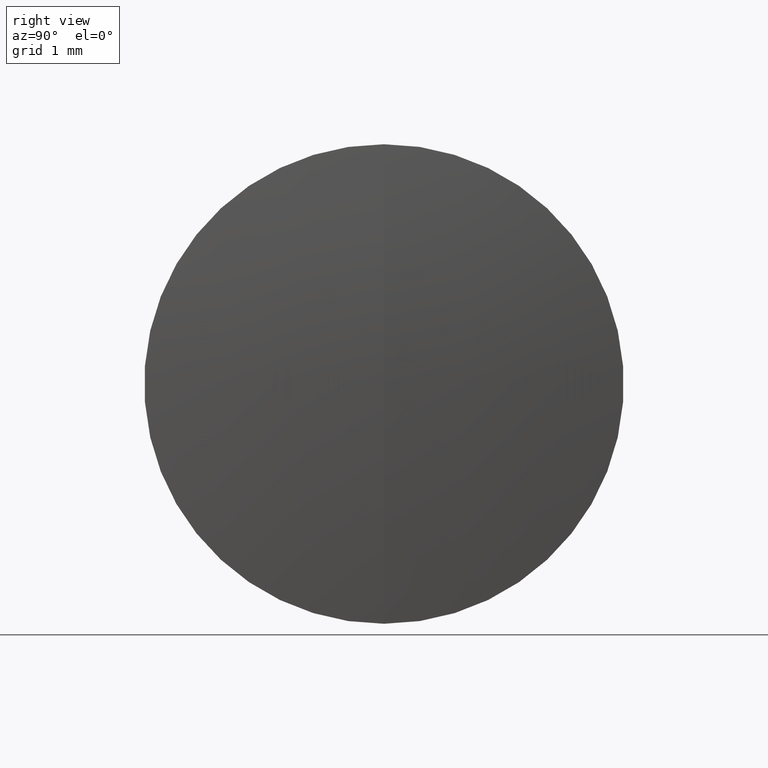
[diagram: clean part render]
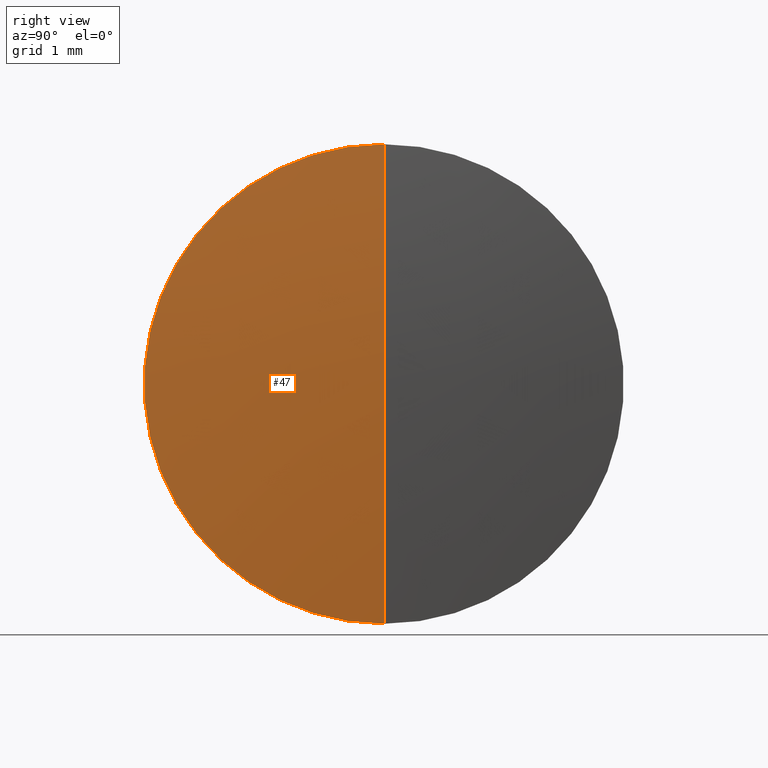
[diagram: same view with one face highlighted and labeled with its STEP entity id]
A machine part, right view. The second image highlights one B-rep face of the part: STEP entity #47.
In plain terms, the highlighted spherical surface has radius 30.759 mm.
Its self-contained STEP definition (entity closure, byte-faithful):
#6 = CIRCLE ( 'NONE', #116, 3.149999999999993700 ) ;
#16 = CARTESIAN_POINT ( 'NONE',  ( -20.28640629775840400, 0.0000000000000000000, 0.0000000000000000000 ) ) ;
#17 = EDGE_CURVE ( 'NONE', #43, #61, #6, .T. ) ;
#27 = AXIS2_PLACEMENT_3D ( 'NONE', #261, #91, #283 ) ;
#36 = DIRECTION ( 'NONE',  ( 0.0000000000000000000, -1.000000000000000000, 0.0000000000000000000 ) ) ;
#43 = VERTEX_POINT ( 'NONE', #104 ) ;
#47 = ADVANCED_FACE ( 'NONE', ( #320 ), #304, .T. ) ;
#61 = VERTEX_POINT ( 'NONE', #274 ) ;
#79 = ORIENTED_EDGE ( 'NONE', *, *, #17, .F. ) ;
#85 = EDGE_CURVE ( 'NONE', #157, #61, #220, .T. ) ;
#91 = DIRECTION ( 'NONE',  ( -0.0000000000000000000, 1.000000000000000000, 1.224646799147353200E-016 ) ) ;
#104 = CARTESIAN_POINT ( 'NONE',  ( 10.31087431670144000, 3.857637417314154800E-016, -3.149999999999993700 ) ) ;
#108 = DIRECTION ( 'NONE',  ( 0.0000000000000000000, 0.0000000000000000000, 1.000000000000000000 ) ) ;
#116 = AXIS2_PLACEMENT_3D ( 'NONE', #164, #202, #108 ) ;
#150 = DIRECTION ( 'NONE',  ( 0.0000000000000000000, 1.000000000000000000, 0.0000000000000000000 ) ) ;
#157 = VERTEX_POINT ( 'NONE', #219 ) ;
#164 = CARTESIAN_POINT ( 'NONE',  ( 10.31087431670144000, 0.0000000000000000000, 0.0000000000000000000 ) ) ;
#167 = EDGE_LOOP ( 'NONE', ( #204, #223, #79 ) ) ;
#176 = CARTESIAN_POINT ( 'NONE',  ( -20.28640629775840400, 0.0000000000000000000, 0.0000000000000000000 ) ) ;
#178 = DIRECTION ( 'NONE',  ( 0.0000000000000000000, 0.0000000000000000000, -1.000000000000000000 ) ) ;
#181 = CIRCLE ( 'NONE', #27, 30.75900000000000400 ) ;
#202 = DIRECTION ( 'NONE',  ( -1.000000000000000000, -0.0000000000000000000, -0.0000000000000000000 ) ) ;
#204 = ORIENTED_EDGE ( 'NONE', *, *, #234, .F. ) ;
#219 = CARTESIAN_POINT ( 'NONE',  ( 10.47259370224160000, 0.0000000000000000000, 1.883445544748672300E-015 ) ) ;
#220 = CIRCLE ( 'NONE', #319, 30.75900000000000400 ) ;
#223 = ORIENTED_EDGE ( 'NONE', *, *, #85, .T. ) ;
#234 = EDGE_CURVE ( 'NONE', #157, #43, #181, .T. ) ;
#261 = CARTESIAN_POINT ( 'NONE',  ( -20.28640629775840400, 0.0000000000000000000, 0.0000000000000000000 ) ) ;
#274 = CARTESIAN_POINT ( 'NONE',  ( 10.31087431670144000, 0.0000000000000000000, 3.149999999999993700 ) ) ;
#283 = DIRECTION ( 'NONE',  ( 0.0000000000000000000, -1.224646799147353500E-016, 1.000000000000000000 ) ) ;
#304 = SPHERICAL_SURFACE ( 'NONE', #313, 30.75900000000000400 ) ;
#306 = DIRECTION ( 'NONE',  ( 0.0000000000000000000, 0.0000000000000000000, 1.000000000000000000 ) ) ;
#313 = AXIS2_PLACEMENT_3D ( 'NONE', #16, #150, #306 ) ;
#319 = AXIS2_PLACEMENT_3D ( 'NONE', #176, #36, #178 ) ;
#320 = FACE_OUTER_BOUND ( 'NONE', #167, .T. ) ;